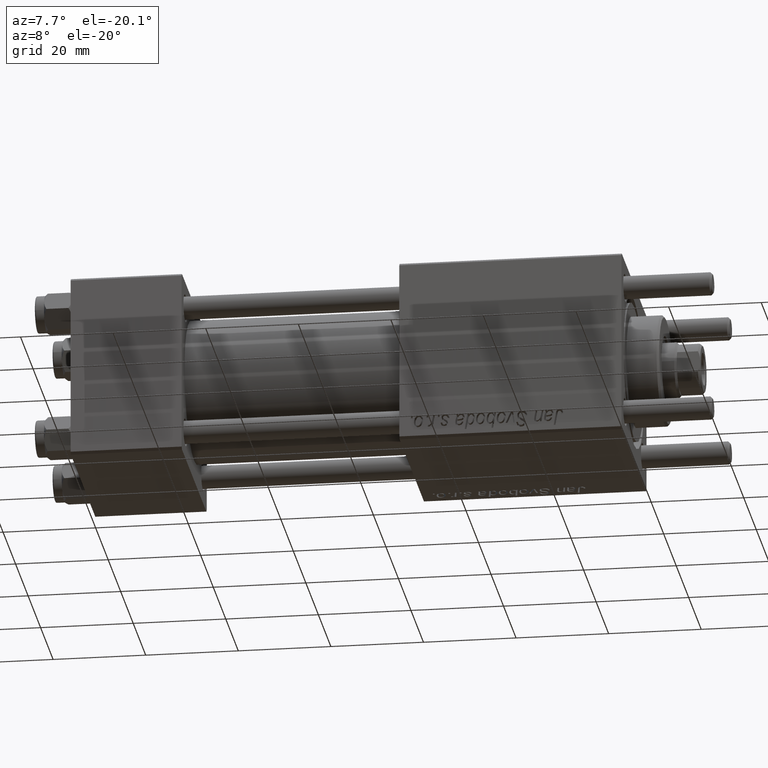
[diagram: clean part render]
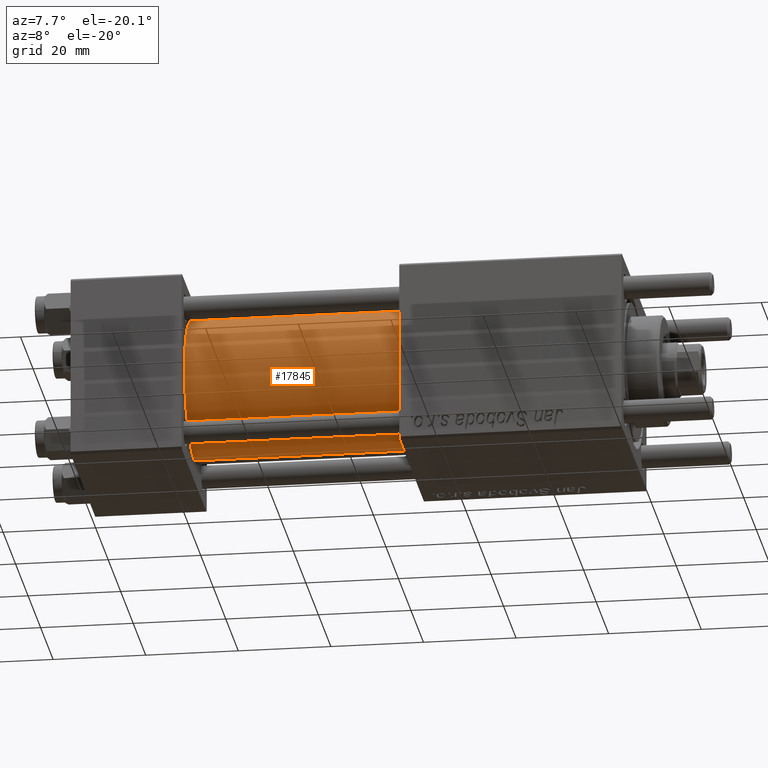
[diagram: same view with one face highlighted and labeled with its STEP entity id]
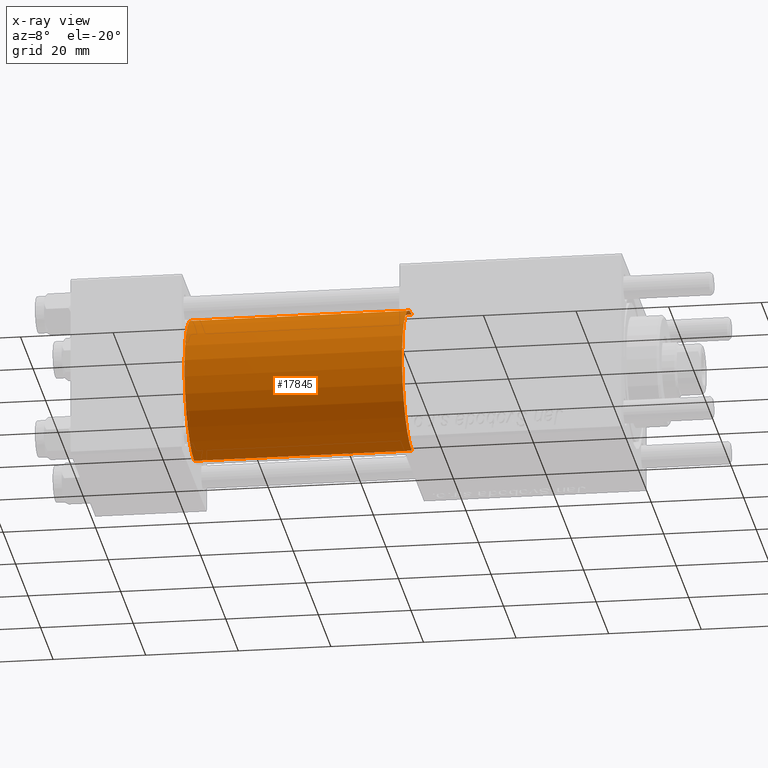
[diagram: x-ray of the same camera — body ghosted, the highlighted face saturated]
A machine part, auxiliary view. The second image highlights one B-rep face of the part: STEP entity #17845.
The next image is the same camera in x-ray: the body ghosted, the highlighted face saturated — about 0% of this face is hidden behind the body in this view.
In plain terms, the highlighted cylindrical surface (partial cylindrical patch) has radius 15.5 mm, axis along (-1, -0, -0).
Its self-contained STEP definition (entity closure, byte-faithful):
#5914 = CARTESIAN_POINT ( 'NONE',  ( 24.00000000000000000, -2.602085213965210642E-15, 0.000000000000000000 ) ) ;
#6610 = VECTOR ( 'NONE', #39521, 1000.000000000000000 ) ;
#8981 = CARTESIAN_POINT ( 'NONE',  ( 24.00000000000000000, -2.602085213965210642E-15, 15.50000000000000000 ) ) ;
#11368 = DIRECTION ( 'NONE',  ( 1.000000000000000000, 0.000000000000000000, 0.000000000000000000 ) ) ;
#12345 = EDGE_CURVE ( 'NONE', #46170, #30373, #17802, .T. ) ;
#12950 = CYLINDRICAL_SURFACE ( 'NONE', #19448, 15.50000000000000000 ) ;
#14449 = ORIENTED_EDGE ( 'NONE', *, *, #38223, .T. ) ;
#15249 = DIRECTION ( 'NONE',  ( 1.000000000000000000, 0.000000000000000000, 0.000000000000000000 ) ) ;
#15395 = DIRECTION ( 'NONE',  ( 0.000000000000000000, 0.000000000000000000, 1.000000000000000000 ) ) ;
#16490 = ORIENTED_EDGE ( 'NONE', *, *, #12345, .F. ) ;
#17802 = LINE ( 'NONE', #27263, #28583 ) ;
#17845 = ADVANCED_FACE ( 'NONE', ( #52254 ), #12950, .T. ) ;
#18949 = DIRECTION ( 'NONE',  ( 0.000000000000000000, 0.000000000000000000, 1.000000000000000000 ) ) ;
#19448 = AXIS2_PLACEMENT_3D ( 'NONE', #24083, #44774, #18949 ) ;
#20425 = CIRCLE ( 'NONE', #51562, 15.50000000000000000 ) ;
#24083 = CARTESIAN_POINT ( 'NONE',  ( 71.00000000000001421, -2.602085213965210642E-15, 0.000000000000000000 ) ) ;
#24322 = CIRCLE ( 'NONE', #55487, 15.50000000000000000 ) ;
#24686 = LINE ( 'NONE', #56726, #6610 ) ;
#27219 = EDGE_LOOP ( 'NONE', ( #16490, #32247, #47604, #14449 ) ) ;
#27263 = CARTESIAN_POINT ( 'NONE',  ( 71.00000000000001421, -7.038826752868131828E-16, -15.50000000000000000 ) ) ;
#28241 = EDGE_CURVE ( 'NONE', #29050, #46170, #24322, .T. ) ;
#28583 = VECTOR ( 'NONE', #44760, 1000.000000000000000 ) ;
#29050 = VERTEX_POINT ( 'NONE', #55762 ) ;
#29540 = CARTESIAN_POINT ( 'NONE',  ( 24.00000000000000000, -7.038826752868131828E-16, -15.50000000000000000 ) ) ;
#30373 = VERTEX_POINT ( 'NONE', #29540 ) ;
#32247 = ORIENTED_EDGE ( 'NONE', *, *, #28241, .F. ) ;
#32464 = CARTESIAN_POINT ( 'NONE',  ( 71.00000000000001421, -2.602085213965210642E-15, 0.000000000000000000 ) ) ;
#38223 = EDGE_CURVE ( 'NONE', #46413, #30373, #20425, .T. ) ;
#39521 = DIRECTION ( 'NONE',  ( -1.000000000000000000, -0.000000000000000000, -0.000000000000000000 ) ) ;
#39801 = EDGE_CURVE ( 'NONE', #29050, #46413, #24686, .T. ) ;
#44760 = DIRECTION ( 'NONE',  ( -1.000000000000000000, -0.000000000000000000, -0.000000000000000000 ) ) ;
#44774 = DIRECTION ( 'NONE',  ( -1.000000000000000000, -0.000000000000000000, -0.000000000000000000 ) ) ;
#45643 = DIRECTION ( 'NONE',  ( 0.000000000000000000, 0.000000000000000000, -1.000000000000000000 ) ) ;
#46170 = VERTEX_POINT ( 'NONE', #56669 ) ;
#46413 = VERTEX_POINT ( 'NONE', #8981 ) ;
#47604 = ORIENTED_EDGE ( 'NONE', *, *, #39801, .T. ) ;
#51562 = AXIS2_PLACEMENT_3D ( 'NONE', #5914, #11368, #15395 ) ;
#52254 = FACE_OUTER_BOUND ( 'NONE', #27219, .T. ) ;
#55487 = AXIS2_PLACEMENT_3D ( 'NONE', #32464, #15249, #45643 ) ;
#55762 = CARTESIAN_POINT ( 'NONE',  ( 71.00000000000001421, -2.602085213965210642E-15, 15.50000000000000000 ) ) ;
#56669 = CARTESIAN_POINT ( 'NONE',  ( 71.00000000000001421, -7.038826752868131828E-16, -15.50000000000000000 ) ) ;
#56726 = CARTESIAN_POINT ( 'NONE',  ( 71.00000000000001421, -2.602085213965210642E-15, 15.50000000000000000 ) ) ;